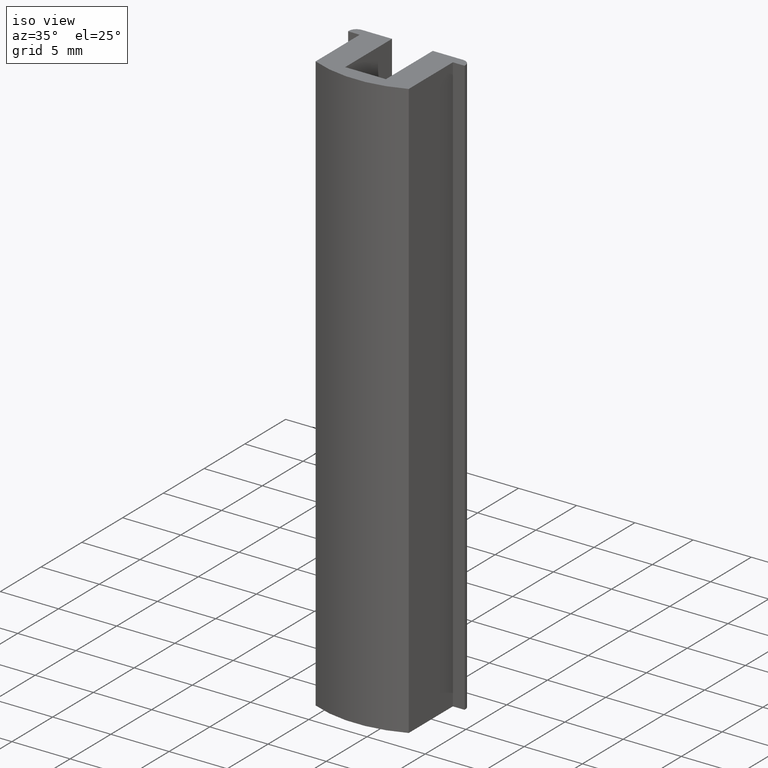
[diagram: clean part render]
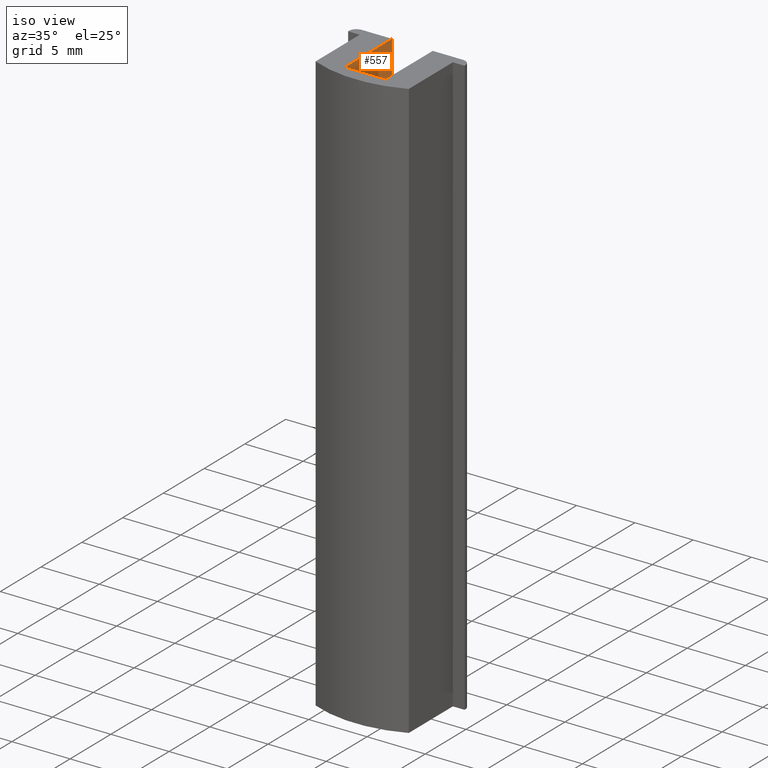
[diagram: same view with one face highlighted and labeled with its STEP entity id]
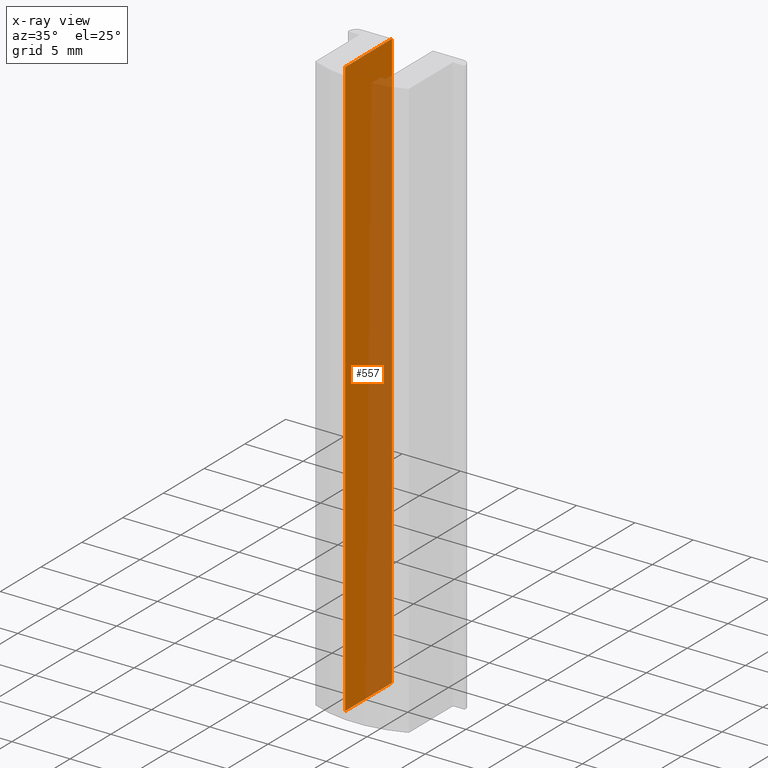
[diagram: x-ray of the same camera — body ghosted, the highlighted face saturated]
A machine part, iso view. The second image highlights one B-rep face of the part: STEP entity #557.
The next image is the same camera in x-ray: the body ghosted, the highlighted face saturated — about 47% of this face is hidden behind the body in this view.
In plain terms, the highlighted planar face has unit normal (-1, 0, 0).
Its self-contained STEP definition (entity closure, byte-faithful):
#26 = EDGE_CURVE ( 'NONE', #548, #341, #284, .T. ) ;
#27 = EDGE_CURVE ( 'NONE', #547, #548, #286, .T. ) ;
#37 = EDGE_CURVE ( 'NONE', #547, #340, #224, .T. ) ;
#82 = FACE_OUTER_BOUND ( 'NONE', #381, .T. ) ;
#124 = PLANE ( 'NONE',  #500 ) ;
#125 = CARTESIAN_POINT ( 'NONE',  ( 2.250000000000000400, 1.250000000000000000, 50.00000000000000000 ) ) ;
#126 = DIRECTION ( 'NONE',  ( -1.000000000000000000, 0.0000000000000000000, 0.0000000000000000000 ) ) ;
#127 = DIRECTION ( 'NONE',  ( 0.0000000000000000000, 0.0000000000000000000, 1.000000000000000000 ) ) ;
#174 = CARTESIAN_POINT ( 'NONE',  ( 2.250000000000000400, 1.250000000000000000, 50.00000000000000000 ) ) ;
#175 = CARTESIAN_POINT ( 'NONE',  ( 2.250000000000000400, 7.000000000000000000, 50.00000000000000000 ) ) ;
#224 = LINE ( 'NONE', #229, #225 ) ;
#225 = VECTOR ( 'NONE', #230, 1000.000000000000000 ) ;
#229 = CARTESIAN_POINT ( 'NONE',  ( 2.250000000000000400, 1.250000000000000000, 50.00000000000000000 ) ) ;
#230 = DIRECTION ( 'NONE',  ( -0.0000000000000000000, -0.0000000000000000000, -1.000000000000000000 ) ) ;
#284 = LINE ( 'NONE', #297, #285 ) ;
#285 = VECTOR ( 'NONE', #298, 1000.000000000000000 ) ;
#286 = LINE ( 'NONE', #299, #287 ) ;
#287 = VECTOR ( 'NONE', #300, 1000.000000000000000 ) ;
#297 = CARTESIAN_POINT ( 'NONE',  ( 2.250000000000000400, 7.000000000000000000, 50.00000000000000000 ) ) ;
#298 = DIRECTION ( 'NONE',  ( -0.0000000000000000000, -0.0000000000000000000, -1.000000000000000000 ) ) ;
#299 = CARTESIAN_POINT ( 'NONE',  ( 2.250000000000000400, 1.250000000000000000, 50.00000000000000000 ) ) ;
#300 = DIRECTION ( 'NONE',  ( 0.0000000000000000000, 1.000000000000000000, 0.0000000000000000000 ) ) ;
#324 = ORIENTED_EDGE ( 'NONE', *, *, #496, .T. ) ;
#325 = ORIENTED_EDGE ( 'NONE', *, *, #26, .F. ) ;
#340 = VERTEX_POINT ( 'NONE', #425 ) ;
#341 = VERTEX_POINT ( 'NONE', #426 ) ;
#363 = CARTESIAN_POINT ( 'NONE',  ( 2.250000000000000400, 1.250000000000000000, 0.0000000000000000000 ) ) ;
#364 = DIRECTION ( 'NONE',  ( 0.0000000000000000000, 1.000000000000000000, 0.0000000000000000000 ) ) ;
#381 = EDGE_LOOP ( 'NONE', ( #324, #325, #564, #565 ) ) ;
#413 = LINE ( 'NONE', #363, #415 ) ;
#415 = VECTOR ( 'NONE', #364, 1000.000000000000000 ) ;
#425 = CARTESIAN_POINT ( 'NONE',  ( 2.250000000000000400, 1.250000000000000000, 0.0000000000000000000 ) ) ;
#426 = CARTESIAN_POINT ( 'NONE',  ( 2.250000000000000400, 7.000000000000000000, 0.0000000000000000000 ) ) ;
#496 = EDGE_CURVE ( 'NONE', #340, #341, #413, .T. ) ;
#500 = AXIS2_PLACEMENT_3D ( 'NONE', #125, #126, #127 ) ;
#547 = VERTEX_POINT ( 'NONE', #174 ) ;
#548 = VERTEX_POINT ( 'NONE', #175 ) ;
#557 = ADVANCED_FACE ( 'NONE', ( #82 ), #124, .F. ) ;
#564 = ORIENTED_EDGE ( 'NONE', *, *, #27, .F. ) ;
#565 = ORIENTED_EDGE ( 'NONE', *, *, #37, .T. ) ;